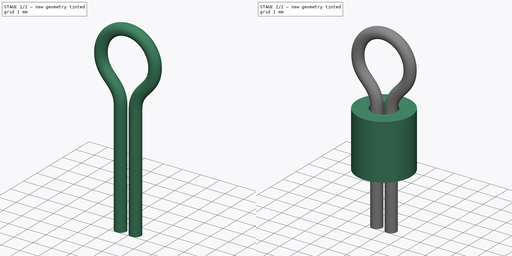
[diagram: build sequence overview — one tinted view per stage of 2, left to right]
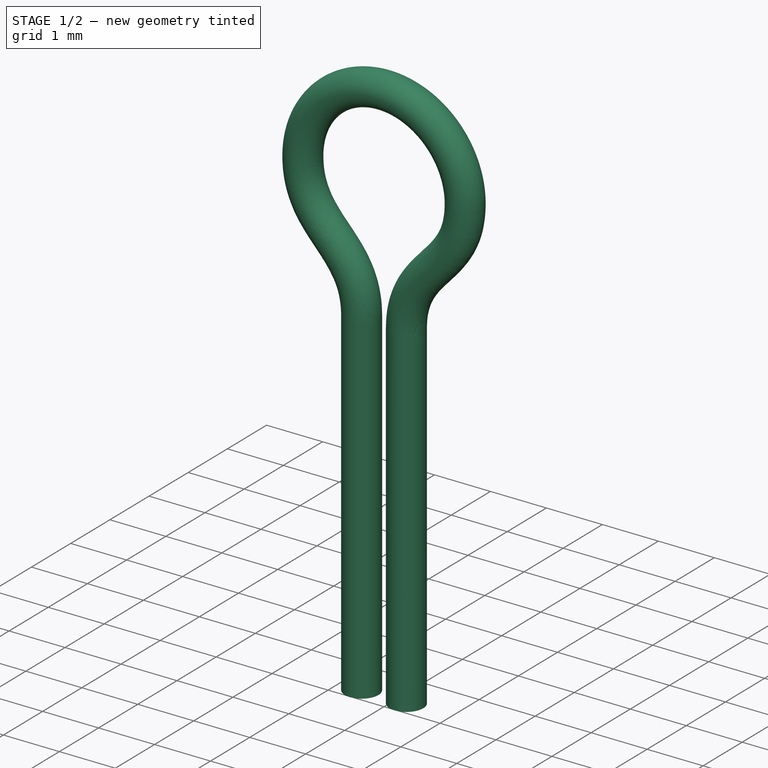
[diagram: stage 1 of 2 — iso view after this stage's code; geometry added in this stage tinted green]
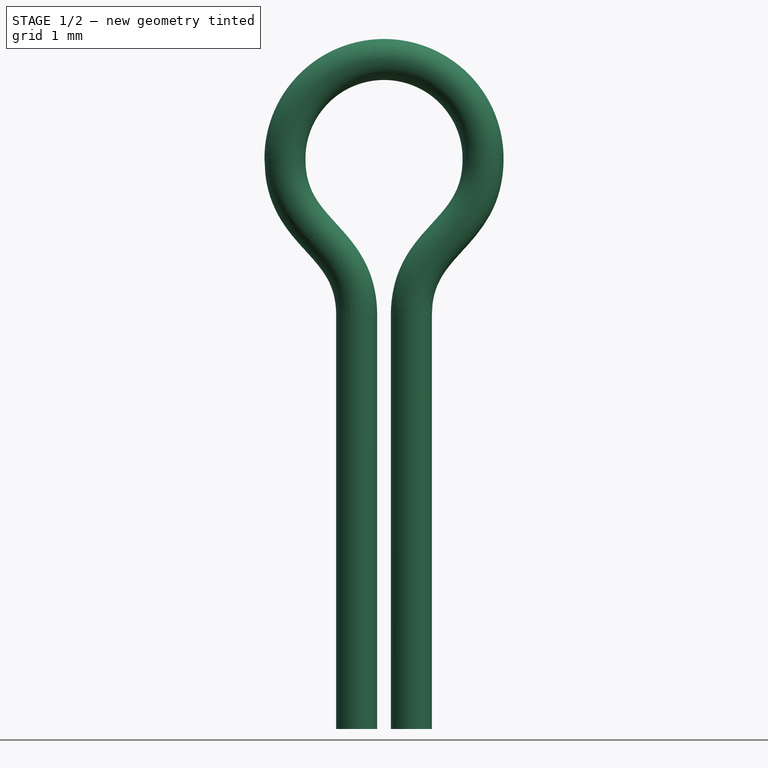
[diagram: stage 1 of 2 — front view after this stage's code; geometry added in this stage tinted green]
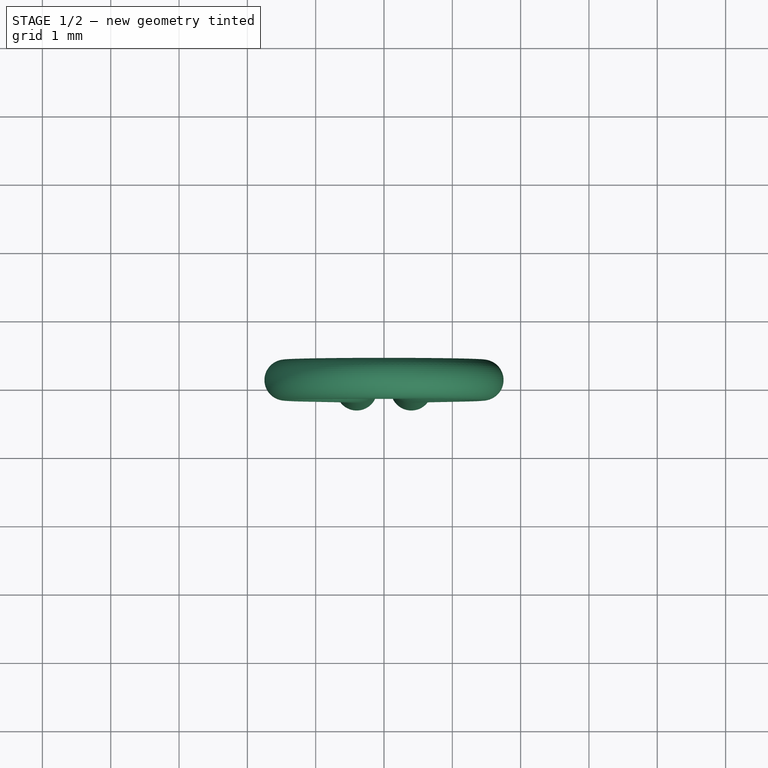
[diagram: stage 1 of 2 — top view after this stage's code; geometry added in this stage tinted green]
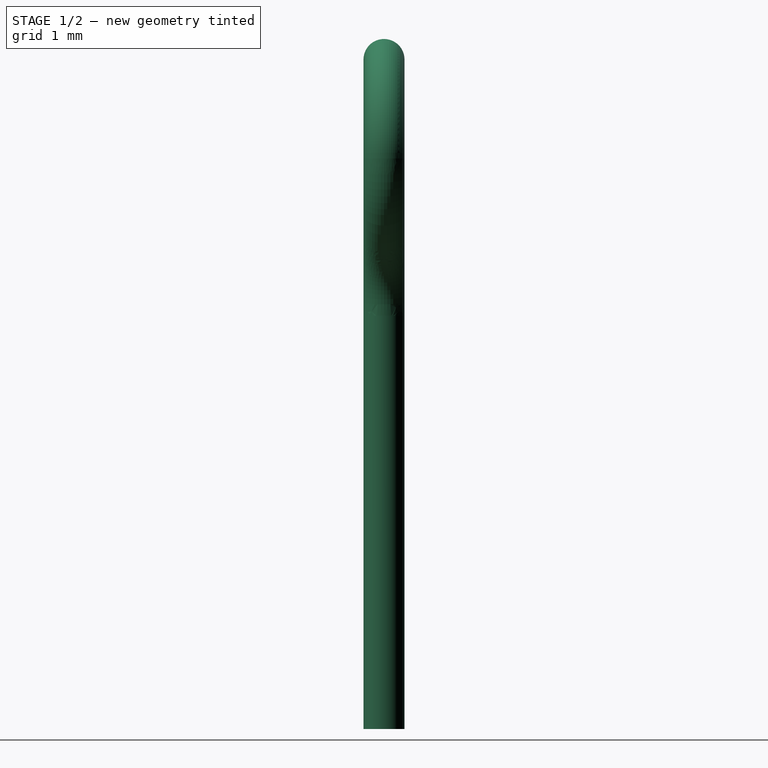
[diagram: stage 1 of 2 — right view after this stage's code; geometry added in this stage tinted green]
FCSTD DOCUMENT  (FreeCAD 0.17R12018 (Git))
Label: Test_Point_Loop_D3.50mm_Drill1.4mm_Beaded
License: All rights reserved
LicenseURL: http://en.wikipedia.org/wiki/All_rights_reserved
objects: Sketcher::SketchObject×3, PartDesign::Body×2, Spreadsheet::Sheet×1, PartDesign::Pad×1, PartDesign::AdditivePipe×1, App::Part×1
note: 9 computed .brp shape members not serialized (recipe doc carries the construction recipe); baked Part::Feature solids carry a one-line shape summary decoded from their .brp

FEATURE [PartDesign::Body] PadBody
  Group = -> [Sketch002,Pad]
  Origin = -> Origin001
  Tip = -> Pad
FEATURE [Sketcher::SketchObject] Sketch001
  MapMode = 5
  Placement = pos=(0,0,0) rot=(1,0,0;1.5708rad)
  expr: Constraints[35] = (dims.Ddrill - dims.DWire) / 2
  expr: Constraints[33] = dims.Spacer
  expr: Constraints[31] = dims.Lbottom
  expr: Constraints[34] = dims.Ddrill - dims.DWire
  expr: Constraints[29] = dims.Lall - (dims.DLoop - dims.DWire) / 2
  expr: Constraints[28] = (dims.DLoop - dims.DWire) / 2
  sketch-geometry (25):
    g0: LineSegment StartX=-0.4 StartY=-3 StartZ=0 EndX=-0.4 EndY=3.05 EndZ=0
    g1: LineSegment StartX=0.4 StartY=3.05 StartZ=0 EndX=0.4 EndY=-2.99999 EndZ=0
    g2: ArcOfCircle CenterX=0 CenterY=5.35001 CenterZ=0 NormalX=0 NormalY=0 NormalZ=1 Radius=1.45 StartAngle=6.28318 EndAngle=9.42478
    g3: LineSegment [constr] StartX=-1.45 StartY=5.35001 StartZ=0 EndX=1.45 EndY=5.35001 EndZ=0
    g4: LineSegment [constr] StartX=-1.45 StartY=3.05 StartZ=0 EndX=1.45 EndY=3.05 EndZ=0
    g5: LineSegment [constr] StartX=1.45 StartY=5.35001 StartZ=0 EndX=1.45 EndY=3.05 EndZ=0
    g6: LineSegment [constr] StartX=-1.45 StartY=3.05 StartZ=0 EndX=-1.45 EndY=5.35001 EndZ=0
    g7: LineSegment [constr] StartX=-0.4 StartY=3.05 StartZ=0 EndX=-0.4 EndY=4.20001 EndZ=0
    g8: LineSegment [constr] StartX=0.4 StartY=3.05 StartZ=0 EndX=0.4 EndY=4.20001 EndZ=0
    g9: LineSegment [constr] StartX=-1.45 StartY=4.20001 StartZ=0 EndX=1.45 EndY=4.20001 EndZ=0
    g10: LineSegment [constr] StartX=0.4 StartY=4.20001 StartZ=0 EndX=0.4 EndY=5.35001 EndZ=0
    g11-g14: Circle [constr] x4 (B-spline internal-alignment scaffolding for g15; pole/knot coordinates omitted)
    g15: BSplineCurve PolesCount=4 KnotsCount=2 Degree=3 IsPeriodic=0
    g16: GeomPoint [constr] X=-0.4 Y=3.05 Z=0
    g17: GeomPoint [constr] X=-1.45 Y=5.35001 Z=0
    g18-g21: Circle [constr] x4 (B-spline internal-alignment scaffolding for g22; pole/knot coordinates omitted)
    g22: BSplineCurve PolesCount=4 KnotsCount=2 Degree=3 IsPeriodic=0
    g23: GeomPoint [constr] X=0.4 Y=3.05 Z=0
    g24: GeomPoint [constr] X=1.45 Y=5.35001 Z=0
  constraints (58):
    c: Vertical(g0)
    c: Vertical(g1)
    c: Coincident(g3,g2)
    c: Horizontal(g3)
    c: PointOnObject(g2,g3)
    c: Coincident(g3,g2)
    c: PointOnObject(g2,g-2)
    c: Horizontal(g4)
    c: Coincident(g5,g2)
    c: Coincident(g5,g4)
    c: Coincident(g6,g4)
    c: Coincident(g6,g2)
    c: PointOnObject(g0,g4)
    c: PointOnObject(g1,g4)
    c: Vertical(g6)
    c: Vertical(g5)
    c: Coincident(g7,g0)
    c: Vertical(g7)
    c: Coincident(g8,g1)
    c: Vertical(g8)
    c: PointOnObject(g9,g6)
    c: PointOnObject(g9,g5)
    c: Horizontal(g9)
    c: PointOnObject(g7,g9)
    c: PointOnObject(g8,g9)
    c: PointOnObject(g10,g3)
    c: Vertical(g10)
    c: Equal(g10,g8)
    c: Radius(g2) = 1.45
    c: DistanceY(g1,g2) = 8.35
    c: DistanceY(g1,g0) = 0
    c: DistanceY(g0,g-1) = 3
    c: Coincident(g10,g8)
    c: DistanceY(g-1,g0) = 3.05
    c: DistanceX(g0,g1) = 0.8
    c: DistanceX(g0,g-1) = 0.4
    c: Coincident(g11,g0)
    c: Radius(g11) = 0
    c: Equal(g11,g12)
    c: Coincident(g12,g7)
    c: Equal(g11,g13)
    c: Coincident(g13,g9)
    c: Equal(g11,g14)
    c: Coincident(g14,g2)
    c: InternalAlignment(g11-g14 -> g15) x4
    c: InternalAlignment(g16,g15)
    c: InternalAlignment(g17,g15)
    c: Coincident(g18,g1)
    c: Radius(g18) = 0
    c: Equal(g18,g19)
    c: Coincident(g19,g8)
    c: Equal(g18,g20)
    c: Coincident(g20,g9)
    c: Equal(g18,g21)
    c: Coincident(g21,g2)
    c: InternalAlignment(g18-g21 -> g22) x4
    c: InternalAlignment(g23,g22)
    c: InternalAlignment(g24,g22)
FEATURE [Sketcher::SketchObject] Sketch
  MapMode = 5
  Placement = pos=(0,0,-3) rot=(0,0,1;0rad)
  expr: Constraints[2] = (dims.Ddrill - dims.DWire) / 2
  expr: Constraints[1] = dims.DWire / 2
  sketch-geometry (1):
    g0: Circle CenterX=-0.4 CenterY=0 CenterZ=0 NormalX=0 NormalY=0 NormalZ=1 Radius=0.3
  constraints (3):
    c: PointOnObject(g0,g-1)
    c: Radius(g0) = 0.3
    c: DistanceX(g0,g-1) = 0.4
FEATURE [PartDesign::AdditivePipe] AdditivePipe
  AuxilleryCurvelinear = true
  AuxillerySpineTangent = false
  Binormal = (0,0,0)
  Mode = 0
  Placement = pos=(0,0,-3) rot=(0,0,1;0rad)
  Profile = -> Sketch
  Spine = -> Sketch001 [Edge1,Edge2,Edge3,Edge4,Edge5]
  SpineTangent = false
  Transformation = 0
  Transition = 0
FEATURE [PartDesign::Body] Body
  Group = -> [Sketch,Sketch001,AdditivePipe]
  Origin = -> Origin002
  Tip = -> AdditivePipe
FEATURE [App::Part] Part  label="Test_Point_Loop_D3.50mm_Drill1.4mm_Beaded"
  Group = -> [PadBody,Body]
  License = CC BY 3.0
  LicenseURL = http://creativecommons.org/licenses/by/3.0/
  Origin = -> Origin
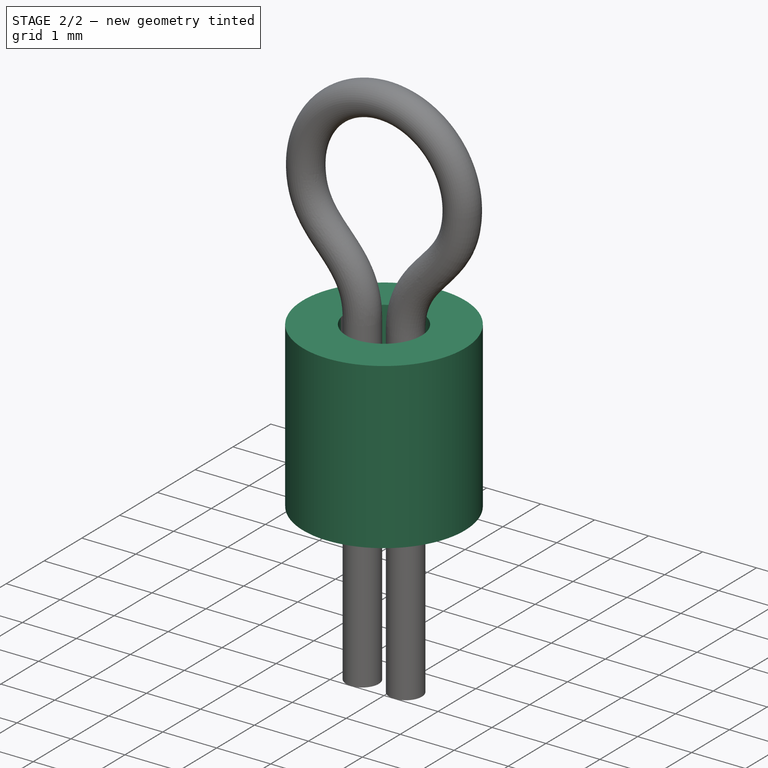
[diagram: stage 2 of 2 — iso view after this stage's code; geometry added in this stage tinted green]
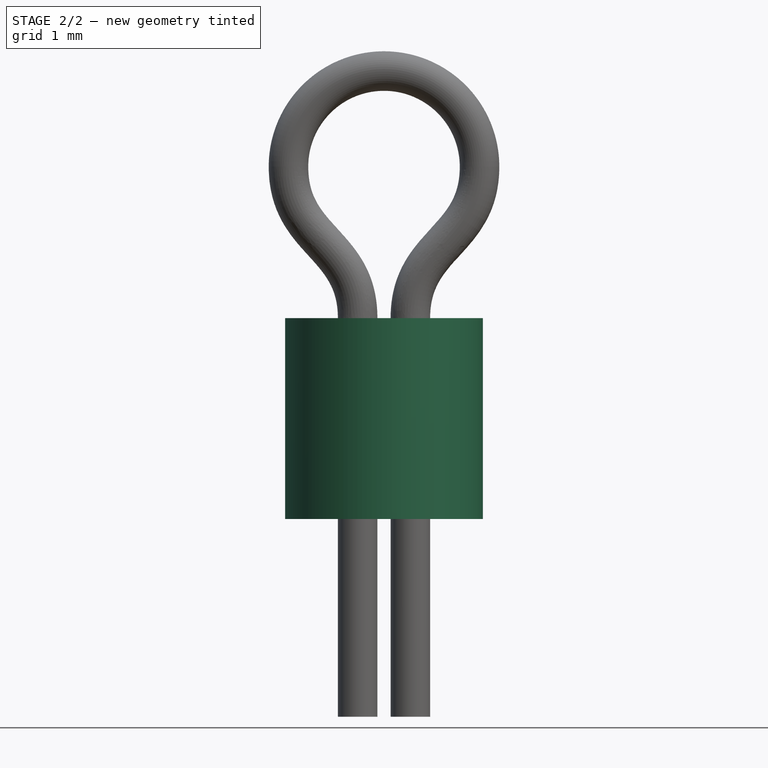
[diagram: stage 2 of 2 — front view after this stage's code; geometry added in this stage tinted green]
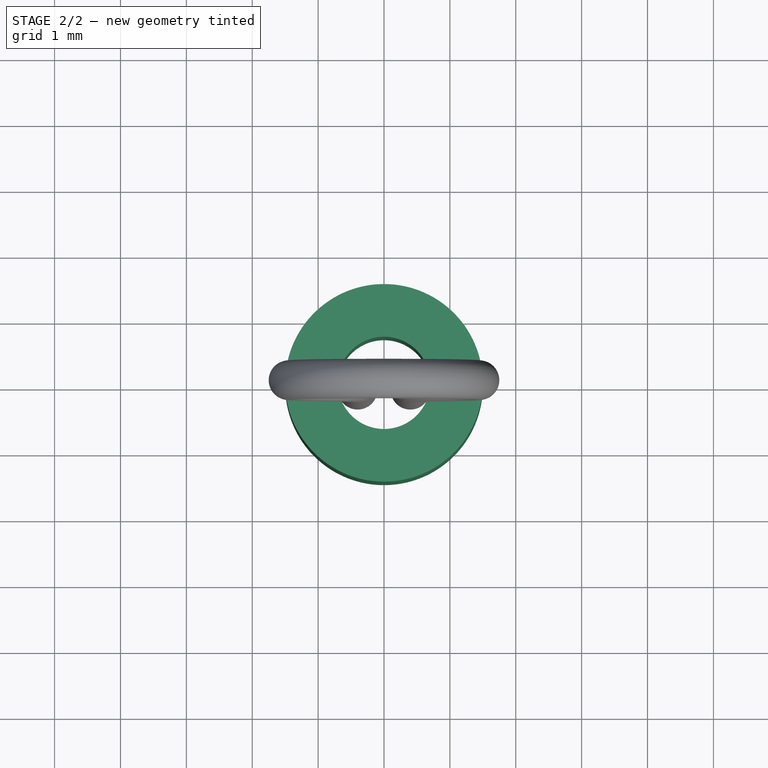
[diagram: stage 2 of 2 — top view after this stage's code; geometry added in this stage tinted green]
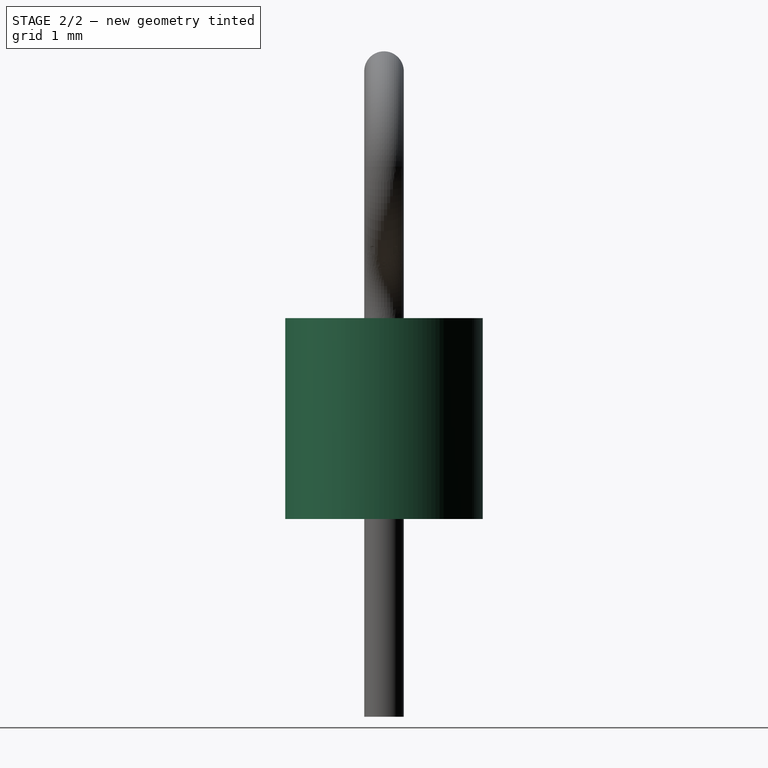
[diagram: stage 2 of 2 — right view after this stage's code; geometry added in this stage tinted green]
FEATURE [Spreadsheet::Sheet] Spreadsheet  label="dims"
  cells = A1="DWire"; B1(DWire)=0.59999999999999998; A2="DLoop"; B2(DLoop)=3.5; A3="Spacer"; B3(Spacer)=3.0499999999999998; A4="DSpacer"; B4(DSpacer)=3; A5="Lall"; B5(Lall)=9.8000000000000007; A6="Ddrill"; B6(Ddrill)=1.3999999999999999; A7="Lbottom"; B7(Lbottom)=3
FEATURE [Sketcher::SketchObject] Sketch002
  MapMode = 5
  Support = -> [XY_Plane003]
  expr: Constraints[2] = dims.DSpacer / 2
  expr: Constraints[3] = dims.Ddrill / 2
  sketch-geometry (2):
    g0: Circle CenterX=0 CenterY=0 CenterZ=0 NormalX=0 NormalY=0 NormalZ=1 Radius=1.5
    g1: Circle CenterX=0 CenterY=0 CenterZ=0 NormalX=0 NormalY=0 NormalZ=1 Radius=0.7
  constraints (4):
    c: Coincident(g0,g-1)
    c: Coincident(g1,g-1)
    c: Radius(g0) = 1.5
    c: Radius(g1) = 0.7
FEATURE [PartDesign::Pad] Pad
  Length = 3.05
  Length2 = 100
  Profile = -> Sketch002
  Type = 0
  expr: Length = dims.Spacer
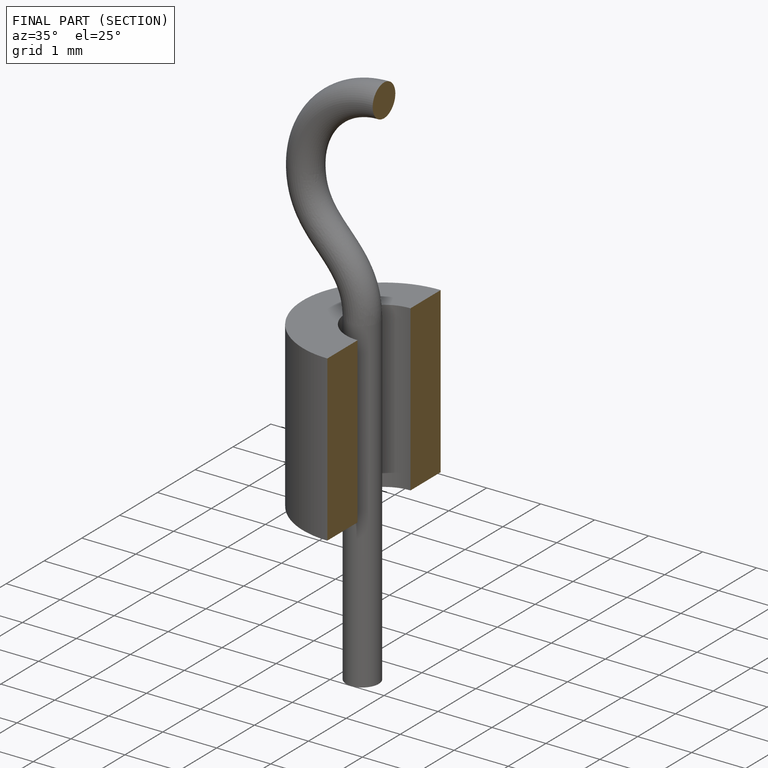
[diagram: finished part — half-section view (interior)]
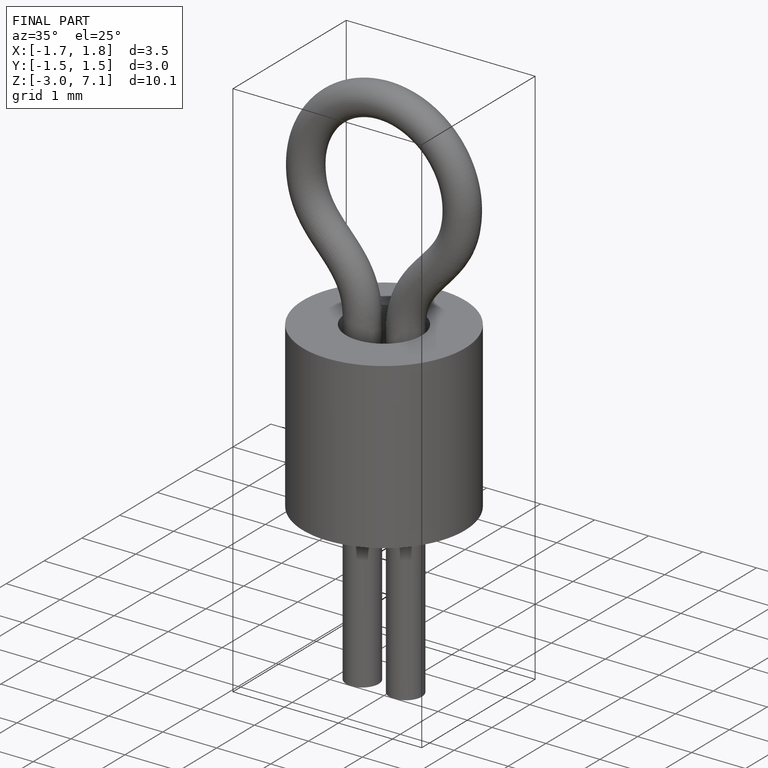
[diagram: finished part — iso view with bounding-box wireframe]
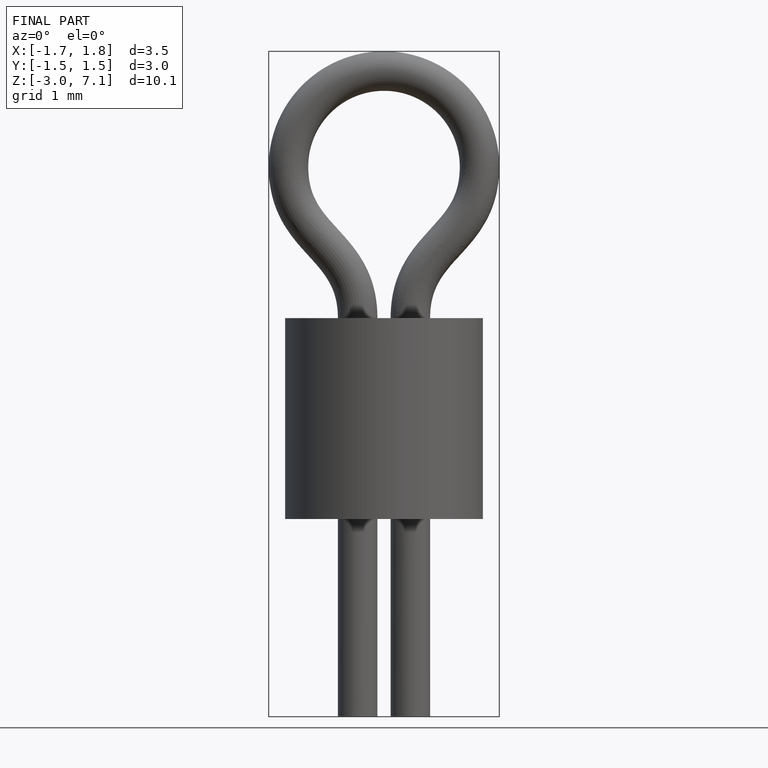
[diagram: finished part — front view with bounding-box wireframe]
